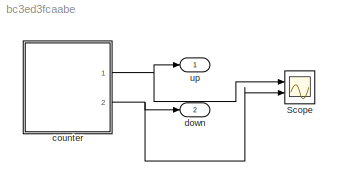
MODEL slx_bc3ed3fcaabe
KIND model
CONFIG AbsTol = auto
CONFIG EnableMultiTasking = off
CONFIG FixedStep = 1
CONFIG MaxStep = auto
CONFIG MinStep = auto
CONFIG RelTol = 1e-3
CONFIG SampleTimeConstraint = Unconstrained
CONFIG SolverName = FixedStepAuto
CONFIG StartTime = 0.0
CONFIG StopTime = 100
BLOCK [Scope] Scope
  Floating = off
  NumInputPorts = 2
  Ports = [2]
  ScopeSpecificationString = Simulink.scopes.TimeScopeBlockCfg('CurrentConfiguration', extmgr.ConfigurationSet(extmgr.Configuration('Core','General UI',true),extmgr.Configuration('Core','Source UI',true),extmgr.Configuration('Sources','WiredSimulink',true),extmgr.Configuration('Visuals','Time Domain',true,'SerializedDisplays',{struct('MinYLimReal','-1.25','MaxYLimReal','11.25','YLabelReal','','MinYLimMag','0.00000','MaxYLimMa...<+1998ch>
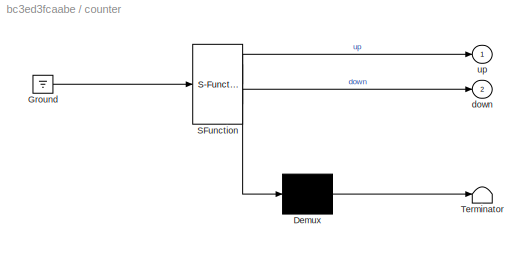
BLOCK [SubSystem] counter
  ErrorFcn = Stateflow.Translate.translate
  PermitHierarchicalResolution = ExplicitOnly
  Ports = [0, 2]
  RequestExecContextInheritance = off
  SFBlockType = Chart
  TreatAsAtomicUnit = on
BLOCK [Demux] counter/ Demux 
  Outputs = 1
  Ports = [1, 1]
BLOCK [Ground] counter/ Ground 
BLOCK [S-Function] counter/ SFunction 
  EnableBusSupport = on
  FunctionName = sf_sfun
  PortCounts = [1 3]
  Ports = [1, 3]
  SFcnIsStateOwnerBlock = off
  SFunctionDeploymentMode = off
  Tag = Stateflow S-Function 3
BLOCK [Terminator] counter/ Terminator 
BLOCK [Outport] counter/down
  Port = 2
BLOCK [Outport] counter/up
BLOCK [Outport] down
  Port = 2
BLOCK [Outport] up
NET counter:1 -> Scope:1, up:1
NET counter:2 -> Scope:2, down:1
note: NET lines group one-source signal fan-out (src -> all destinations, sorted); 1:1 wires keep LINE
CHART counter states=2 transitions=4
  STATE_LABEL 'reset1\nentry:\nup = 0;\ndown = 10;'
  STATE_LABEL 'counter\nentry:\nup = up + 1;\ndown = down -1;'
CHART  states=0 transitions=0
